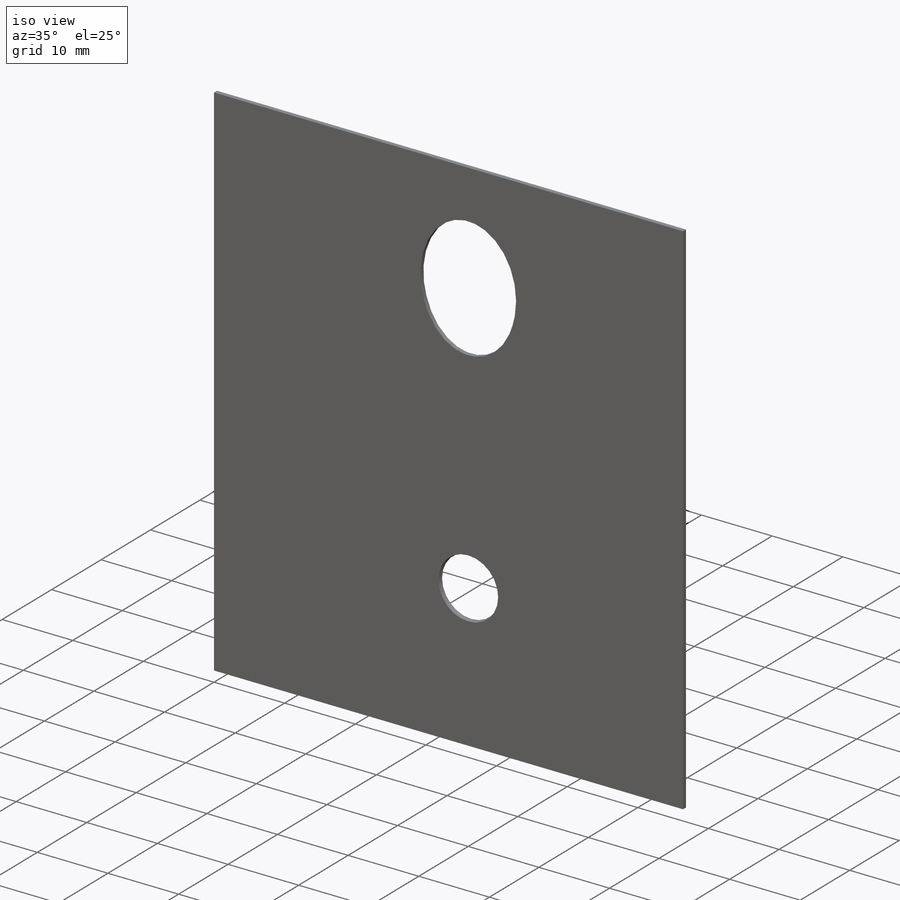
[diagram: iso view]
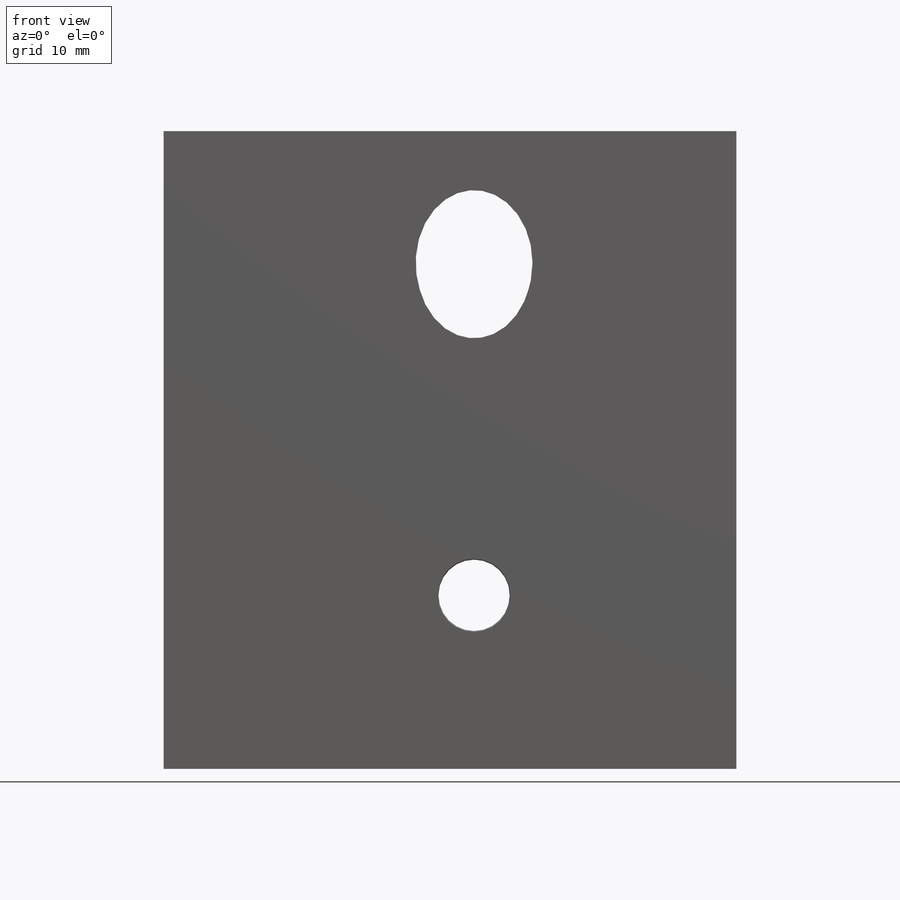
[diagram: front view]
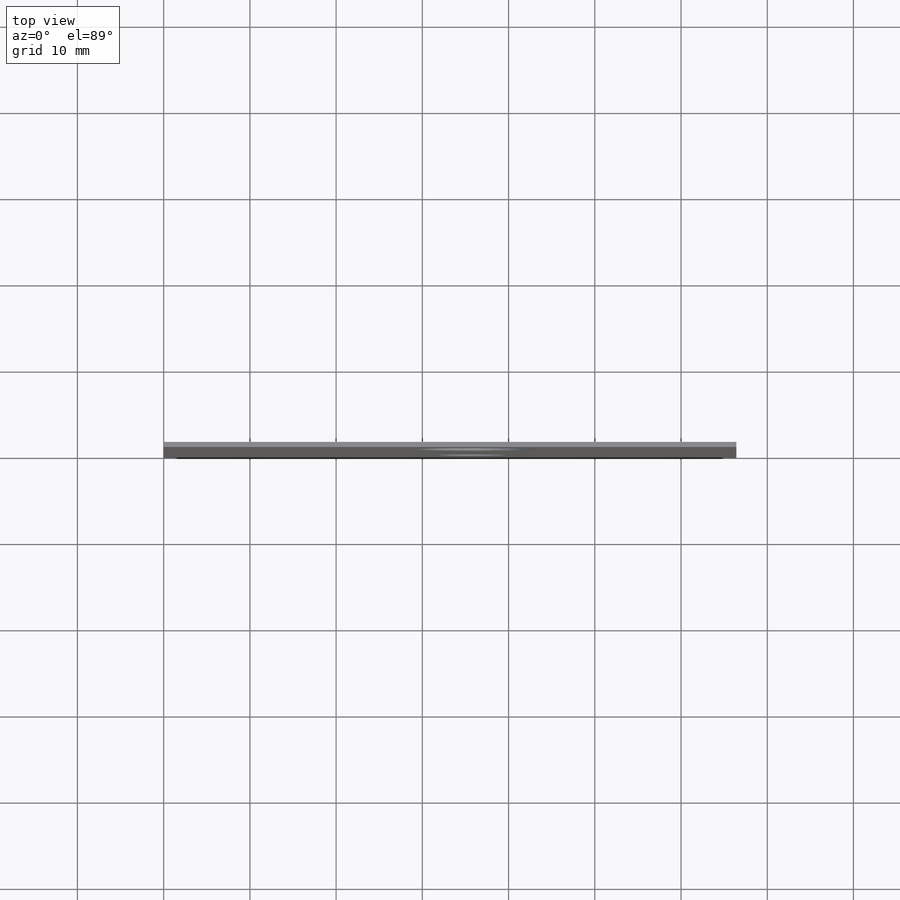
[diagram: top view]
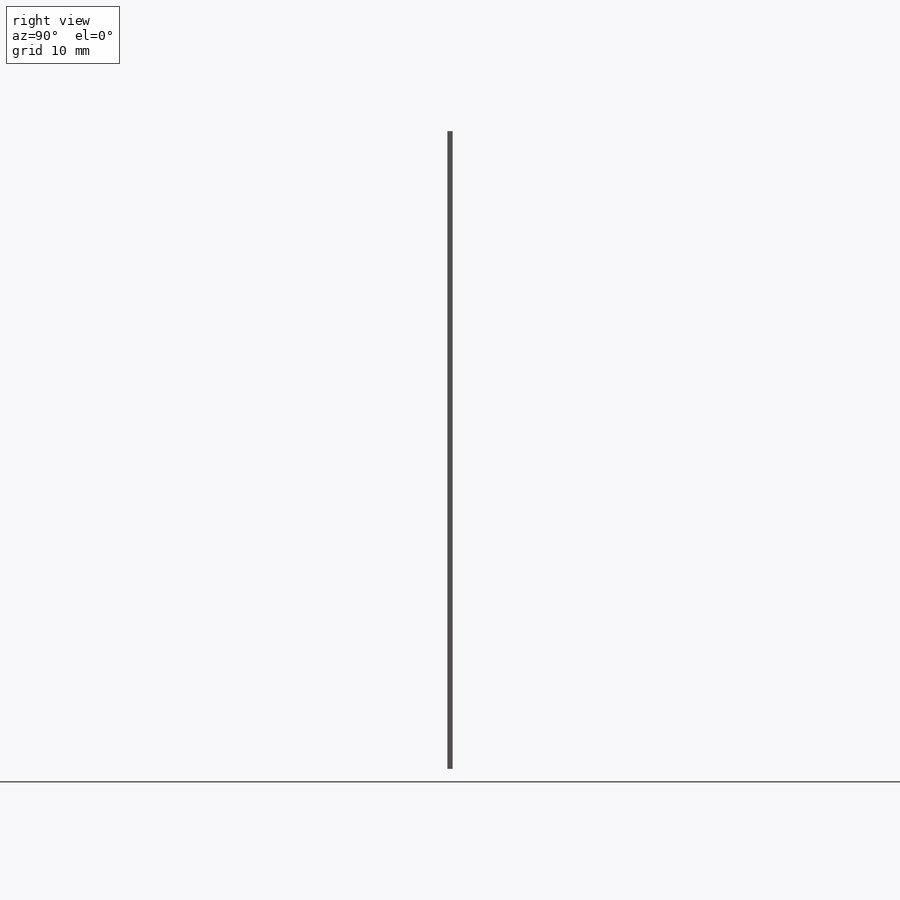
[diagram: right view]
SOLIDWORKS PART (.sldprt)
format: sldprt  version: not decoded by parser v0  size: 278,016 bytes
history: native  units: mm
features: sketch x17, sheet_metal_op x6, cut_revolve x5, plane x4, material x1, cut_extrude x1 + 4 further entries (+10 scaffold rows collapsed; 5 parser-record rows omitted)
feature tree (53):
  scaffold x10  (default folders/planes/origin — collapsed)
  material  "Material <nicht angegeben>"
  plane  "Ebene vorne"
  plane  "Ebene oben"
  plane  "Ebene rechts"
  sketch  "Skizze1"  dims[c1.D1=~40.661487mm c1.D2=~66.411737mm c2.D1=2.0mm c2.D2=0.5 c2.D3=0.0mm c2.D6=500.0mm]
  sheet_metal_op  "Basis-Blech1"
  sketch  "Skizze10"  dims[c1.D1=2.0mm c1.D4=144.0deg c1.D5=1.0 c1.D8=0.3mm c1.D9=0.3mm c2.D1=2.0mm c2.D2=500.0mm c2.D3=0.0mm c2.D6=10.0mm c2.D7=42.7mm]
  plane  "Ebene1"  Offset=36mm
  sketch  "Skizze11"  dims[D1=~30.90236mm]
  cut_revolve  "Schnitt-Rotation1"  Angle=360deg
  sketch  "Skizze13"
  cut_extrude  "Schnitt-Linear austragen1"  Depth=1mm
  sketch  "Skizze14"  dims[Schnitt-Linear austragen2=65536.0 D2=0.6mm]
  sketch  "Biegung-Linien1"
  sketch  "Rahmen1"
  sheet_metal_op  "Blech1"
  "Abwicklung1"
  sketch  "Biegung-Linien2"
  sketch  "Rahmen2"
  parser-record x5  (decoder bookkeeping rows leaked as tree rows — omitted from the tree; the rows remain in map.json)
  cut_revolve  "Blech2"  [1 undecoded]
  sheet_metal_op  "Abwicklung1"
  sketch  "Biegung-Linien2"
  sketch  "Rahmen2"
  cut_revolve  "Blech3"  [1 undecoded]
  sheet_metal_op  "Abwicklung1"
  sketch  "Biegung-Linien2"
  sketch  "Rahmen2"
  "Abwickeln-<Kantenbiegung1>1"
  cut_revolve  "Blech4"  [1 undecoded]
  sheet_metal_op  "Abwicklung1"
  sketch  "Biegung-Linien2"
  sketch  "Rahmen2"
  "Abwickeln-<Kantenbiegung1>1"
  cut_revolve  "Blech5"  [1 undecoded]
  sheet_metal_op  "Abwicklung1"
  sketch  "Biegung-Linien2"
  sketch  "Rahmen2"
  "Abwickeln-<Kantenbiegung1>1"
decode coverage: 6 of 29 modeling features carry decoded parameters; 4 rows unclassified (native names shown)
note: ~ marks probable driven/reference dimensions
note: 4 parameter values undecoded
summary: no parameter record found for 4 features
note: suppression state not decoded; provenance and decode notes live in map.json
